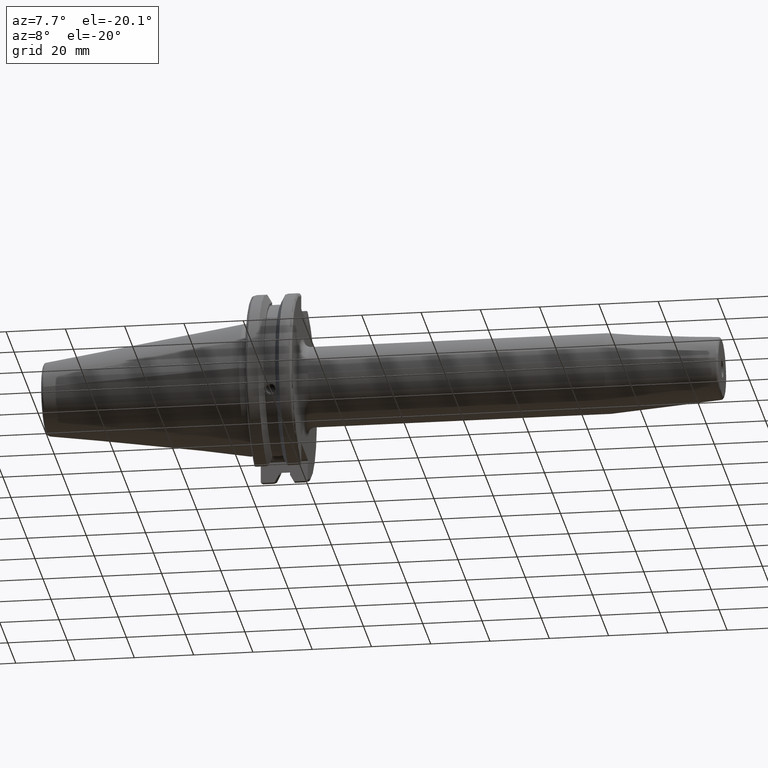
[diagram: clean part render]
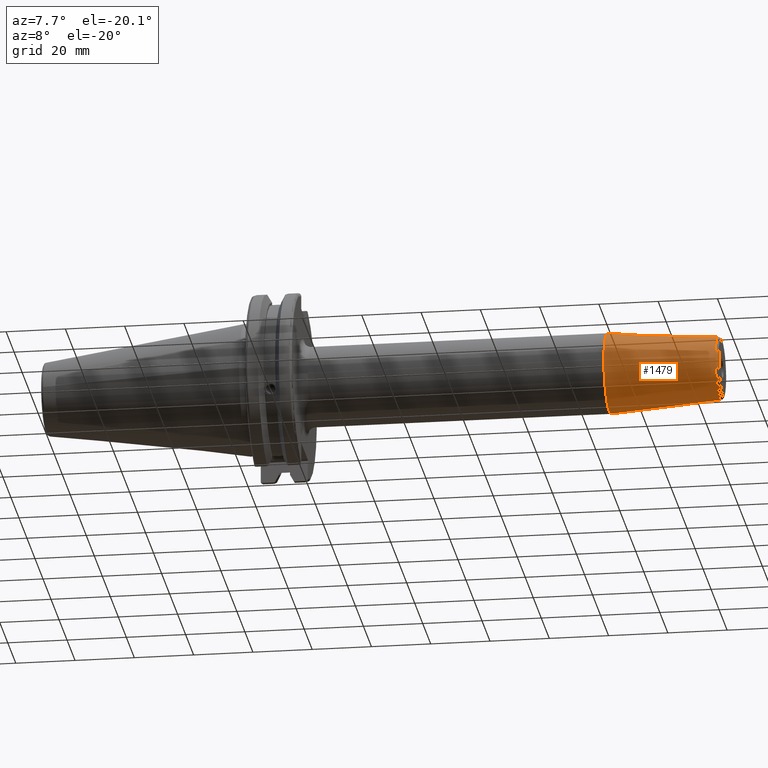
[diagram: same view with one face highlighted and labeled with its STEP entity id]
A machine part, auxiliary view. The second image highlights one B-rep face of the part: STEP entity #1479.
In plain terms, the highlighted conical surface has half-angle 4.5 deg.
Its self-contained STEP definition (entity closure, byte-faithful):
#161=LINE('',#2229,#255);
#255=VECTOR('',#1780,12.);
#349=CONICAL_SURFACE('',#1593,12.,0.0785398163397448);
#363=FACE_OUTER_BOUND('',#450,.T.);
#450=EDGE_LOOP('',(#1013,#1014,#1015,#1016,#1017));
#554=CIRCLE('',#1591,10.5725268420749);
#555=CIRCLE('',#1592,10.5725268420749);
#556=CIRCLE('',#1594,13.5);
#626=VERTEX_POINT('',#2222);
#627=VERTEX_POINT('',#2224);
#628=VERTEX_POINT('',#2228);
#779=EDGE_CURVE('',#626,#627,#554,.T.);
#780=EDGE_CURVE('',#627,#626,#555,.T.);
#781=EDGE_CURVE('',#627,#628,#161,.T.);
#782=EDGE_CURVE('',#628,#628,#556,.T.);
#1013=ORIENTED_EDGE('',*,*,#780,.F.);
#1014=ORIENTED_EDGE('',*,*,#781,.T.);
#1015=ORIENTED_EDGE('',*,*,#782,.T.);
#1016=ORIENTED_EDGE('',*,*,#781,.F.);
#1017=ORIENTED_EDGE('',*,*,#779,.F.);
#1479=ADVANCED_FACE('',(#363),#349,.T.);
#1591=AXIS2_PLACEMENT_3D('',#2225,#1774,#1775);
#1592=AXIS2_PLACEMENT_3D('',#2226,#1776,#1777);
#1593=AXIS2_PLACEMENT_3D('',#2227,#1778,#1779);
#1594=AXIS2_PLACEMENT_3D('',#2230,#1781,#1782);
#1774=DIRECTION('center_axis',(1.,0.,0.));
#1775=DIRECTION('ref_axis',(0.,-1.,3.06161699786838E-17));
#1776=DIRECTION('center_axis',(1.,0.,0.));
#1777=DIRECTION('ref_axis',(0.,-1.,3.06161699786838E-17));
#1778=DIRECTION('center_axis',(-1.,0.,0.));
#1779=DIRECTION('ref_axis',(0.,1.,0.));
#1780=DIRECTION('',(-0.996917333733128,-0.0784590957278449,-9.60846804471011E-18));
#1781=DIRECTION('center_axis',(1.,0.,0.));
#1782=DIRECTION('ref_axis',(0.,0.,-1.));
#2222=CARTESIAN_POINT('',(159.078459095728,-1.29476111560465E-15,10.5725268420749));
#2224=CARTESIAN_POINT('',(159.078459095728,-10.5725268420749,-1.29476111560465E-15));
#2225=CARTESIAN_POINT('Origin',(159.078459095728,0.,-1.61845139450582E-15));
#2226=CARTESIAN_POINT('Origin',(159.078459095728,0.,-1.61845139450582E-15));
#2227=CARTESIAN_POINT('Origin',(140.940692895738,0.,0.));
#2228=CARTESIAN_POINT('',(121.881385791476,-13.5,-1.65327317884893E-15));
#2229=CARTESIAN_POINT('',(140.940692895738,-12.,-1.46957615897682E-15));
#2230=CARTESIAN_POINT('Origin',(121.881385791476,0.,0.));